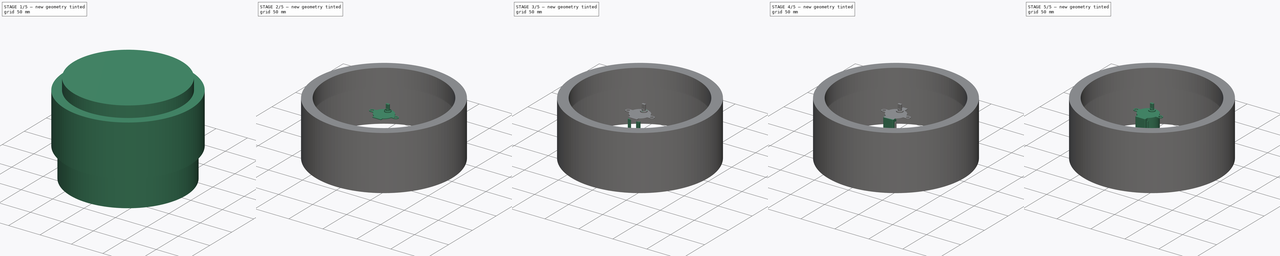
[diagram: build sequence overview — one tinted view per stage of 5, left to right]
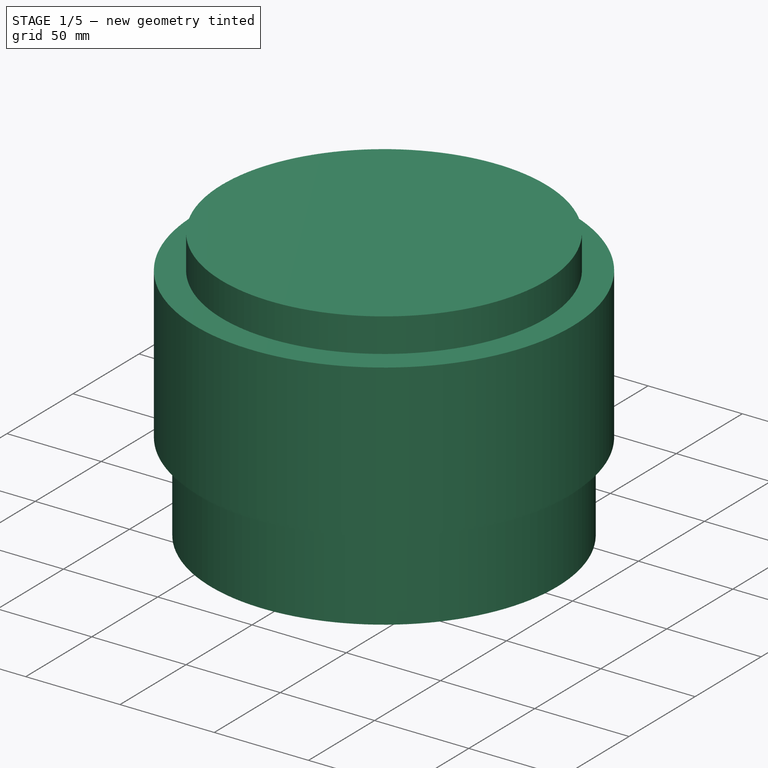
[diagram: stage 1 of 5 — iso view after this stage's code; geometry added in this stage tinted green]
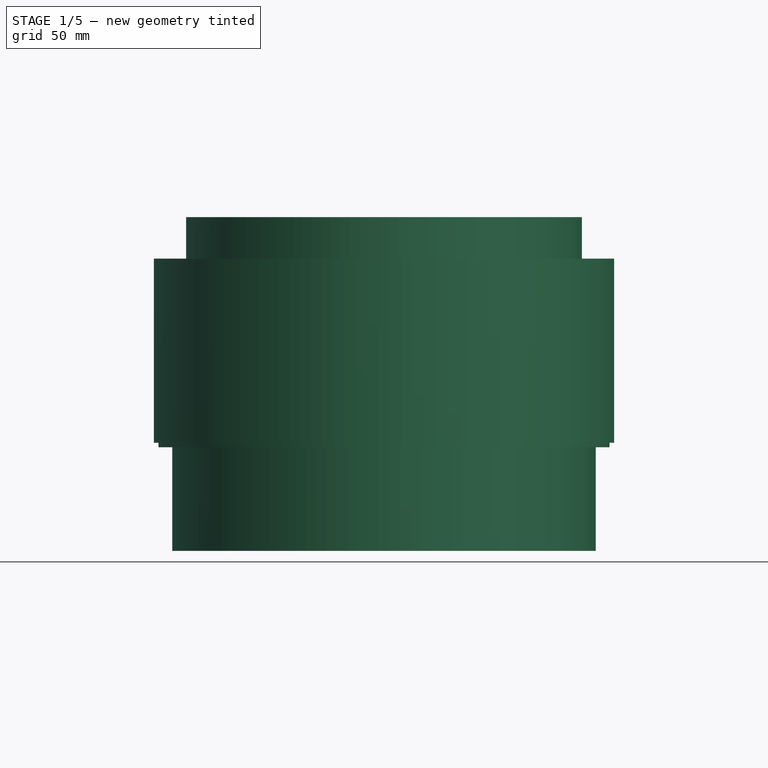
[diagram: stage 1 of 5 — front view after this stage's code; geometry added in this stage tinted green]
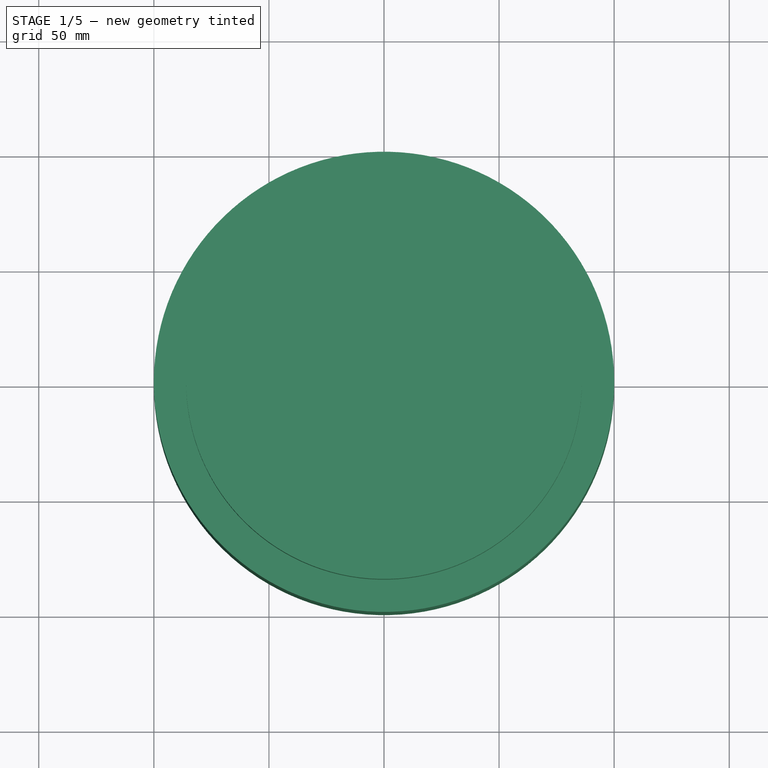
[diagram: stage 1 of 5 — top view after this stage's code; geometry added in this stage tinted green]
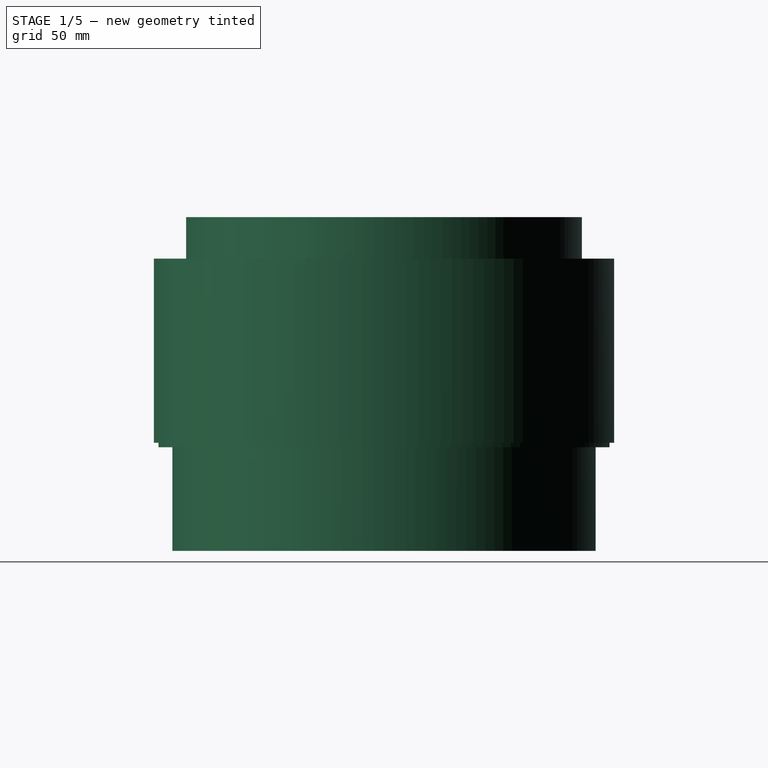
[diagram: stage 1 of 5 — right view after this stage's code; geometry added in this stage tinted green]
FCSTD DOCUMENT  (FreeCAD 1.0R39319 (Git))
Label: clock
License: All rights reserved
LicenseURL: http://en.wikipedia.org/wiki/All_rights_reserved
objects: Part::Cylinder×14, Part::MultiFuse×9, Part::Cut×8, Part::Box×7, Part::Fillet×3, Sketcher::SketchObject×2, PartDesign::Pad×2, PartDesign::Body×2, Part::Chamfer×1, PartDesign::ShapeBinder×1
note: 55 computed .brp shape members not serialized (recipe doc carries the construction recipe); baked Part::Feature solids carry a one-line shape summary decoded from their .brp

FEATURE [Part::Cylinder] Cylinder008
  Angle = 360
  AttacherType = Attacher::AttachEngine3D
  FirstAngle = 0
  Height = 80
  Placement = pos=(0,0,-40) rot=(0,0,1;0rad)
  Radius = 100
  SecondAngle = 0
FEATURE [Part::Cylinder] Cylinder009
  Angle = 360
  AttacherType = Attacher::AttachEngine3D
  FirstAngle = 0
  Height = 80
  Placement = pos=(0,0,-42) rot=(0,0,1;0rad)
  Radius = 98
  SecondAngle = 0
FEATURE [Part::Cylinder] Cylinder010
  Angle = 360
  AttacherType = Attacher::AttachEngine3D
  FirstAngle = 0
  Height = 100
  Placement = pos=(0,0,-42) rot=(0,0,1;0rad)
  Radius = 90
  SecondAngle = 0
FEATURE [Part::Cut] Cut006
  Base = -> Cylinder009
  Refine = true
  Tool = -> Cylinder010
FEATURE [Part::Cylinder] Cylinder011
  Angle = 360
  AttacherType = Attacher::AttachEngine3D
  FirstAngle = 0
  Height = 100
  Placement = pos=(0,0,-42) rot=(0,0,1;0rad)
  Radius = 86
  SecondAngle = 0
FEATURE [Part::Cylinder] Cylinder012
  Angle = 360
  AttacherType = Attacher::AttachEngine3D
  FirstAngle = 0
  Height = 100
  Placement = pos=(0,0,-87) rot=(0,0,1;0rad)
  Radius = 92
  SecondAngle = 0
FEATURE [Part::Cylinder] Cylinder013
  Angle = 360
  AttacherType = Attacher::AttachEngine3D
  FirstAngle = 0
  Height = 100
  Placement = pos=(0,0,-84) rot=(0,0,1;0rad)
  Radius = 88
  SecondAngle = 0
FEATURE [Part::MultiFuse] Fusion007
  Refine = true
  Shapes = -> [Cylinder011,Cylinder012,Cylinder013]
FEATURE [Part::MultiFuse] Fusion008
  Refine = true
  Shapes = -> [Cut006,Fusion007]
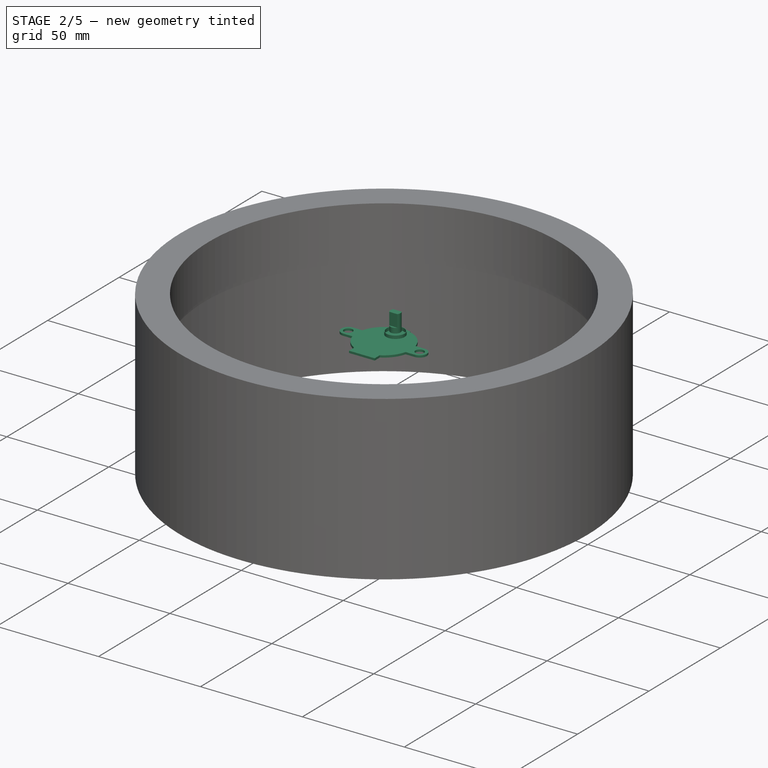
[diagram: stage 2 of 5 — iso view after this stage's code; geometry added in this stage tinted green]
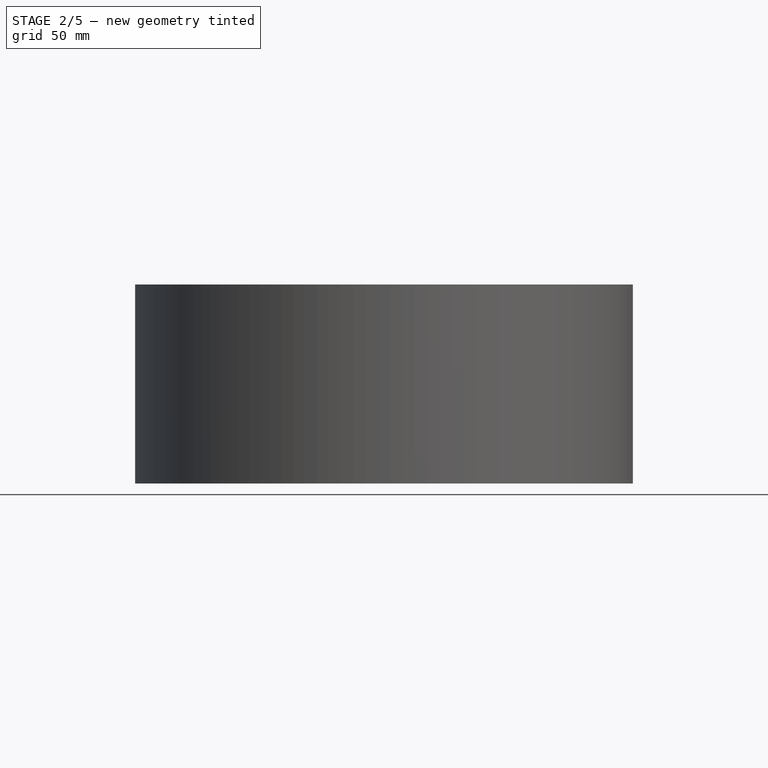
[diagram: stage 2 of 5 — front view after this stage's code; geometry added in this stage tinted green]
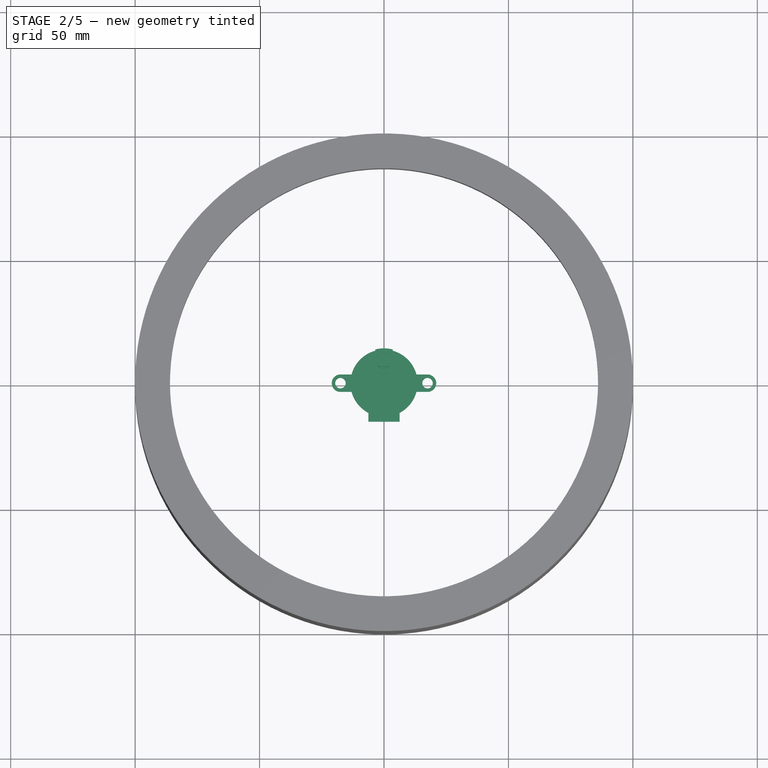
[diagram: stage 2 of 5 — top view after this stage's code; geometry added in this stage tinted green]
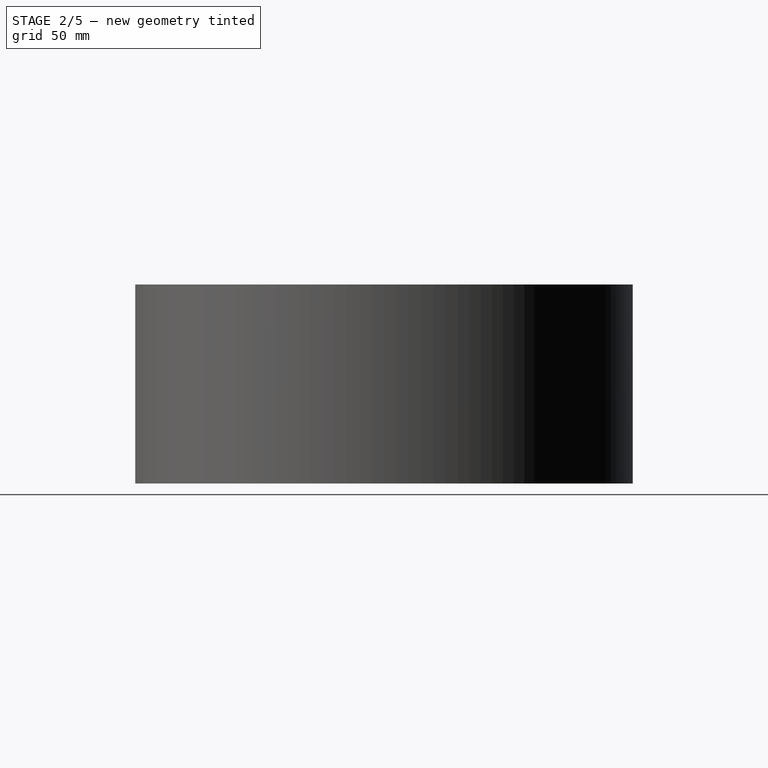
[diagram: stage 2 of 5 — right view after this stage's code; geometry added in this stage tinted green]
FEATURE [PartDesign::Pad] Pad
  AllowMultiFace = false
  Direction = (0,0,1)
  Length = 1
  Length2 = 100
  Profile = -> Sketch
  Suppressed = false
  Type = 0
FEATURE [PartDesign::Body] Body
  AllowCompound = false
  Group = -> [Sketch,Pad]
  Origin = -> Origin
  Placement = pos=(0,0,18) rot=(0,0,1;0rad)
  Tip = -> Pad
FEATURE [Part::Cylinder] Cylinder004
  Angle = 360
  AttacherType = Attacher::AttachEngine3D
  FirstAngle = 0
  Height = 1.5
  Placement = pos=(0,8,19) rot=(0,0,1;0rad)
  Radius = 4.5
  SecondAngle = 0
FEATURE [Part::Cylinder] Cylinder005
  Angle = 360
  AttacherType = Attacher::AttachEngine3D
  FirstAngle = 0
  Height = 2.5
  Placement = pos=(0,8,20.5) rot=(0,0,1;0rad)
  Radius = 2.5
  SecondAngle = 0
FEATURE [Part::Cylinder] Cylinder006
  Angle = 360
  AttacherType = Attacher::AttachEngine3D
  FirstAngle = 0
  Height = 1.5
  Placement = pos=(0,8,19) rot=(0,0,1;0rad)
  Radius = 4.25
  SecondAngle = 0
FEATURE [Part::Cut] Cut005
  Base = -> Cylinder004
  Tool = -> Cylinder006
FEATURE [PartDesign::ShapeBinder] CopyCylinder005
  Placement = pos=(0,8,20.5) rot=(0,0,1;0rad)
  TraceSupport = false
FEATURE [Sketcher::SketchObject] Sketch001
  ArcFitTolerance = 0
  AttachmentSupport = -> [CopyCylinder005]
  FullyConstrained = true
  MakeInternals = false
  MapMode = 5
  Placement = pos=(0,8,23) rot=(0,0,1;0rad)
  sketch-geometry (4):
    g0: ArcOfCircle CenterX=0 CenterY=0 CenterZ=0 NormalX=0 NormalY=0 NormalZ=1 AngleXU=0 Radius=2.5 StartAngle=2.49809 EndAngle=3.78509
    g1: LineSegment StartX=-2 StartY=1.5 StartZ=0 EndX=2 EndY=1.5 EndZ=0
    g2: LineSegment StartX=2 StartY=-1.5 StartZ=0 EndX=-2 EndY=-1.5 EndZ=0
    g3: ArcOfCircle CenterX=0 CenterY=0 CenterZ=0 NormalX=0 NormalY=0 NormalZ=1 AngleXU=0 Radius=2.5 StartAngle=5.63968 EndAngle=6.92669
  constraints (12):
    c: Radius(g0) = 2.5
    c: Coincident(g0,g-1)
    c: Horizontal(g2)
    c: Equal(g0,g3)
    c: Coincident(g0,g3)
    c: Coincident(g2,g0)
    c: Coincident(g2,g3)
    c: Coincident(g1,g3)
    c: Coincident(g1,g0)
    c: DistanceY(g0) = 1.5
    c: DistanceY(g0) = -1.5
    c: Horizontal(g1)
FEATURE [PartDesign::Pad] Pad001
  AllowMultiFace = false
  Direction = (0,0,1)
  Length = 6
  Length2 = 100
  Placement = pos=(0,8,20.5) rot=(0,0,1;0rad)
  Profile = -> Sketch001
  Suppressed = false
  Type = 0
FEATURE [PartDesign::Body] Body001
  AllowCompound = false
  Group = -> [CopyCylinder005,Sketch001,Pad001]
  Origin = -> Origin001
  Tip = -> Pad001
FEATURE [Part::MultiFuse] Fusion004
  Shapes = -> [Cylinder005,Body001]
FEATURE [Part::MultiFuse] Fusion005
  Shapes = -> [Body,Cut005]
FEATURE [Part::Cut] Cut007
  Base = -> Cylinder008
  Refine = true
  Tool = -> Fusion008
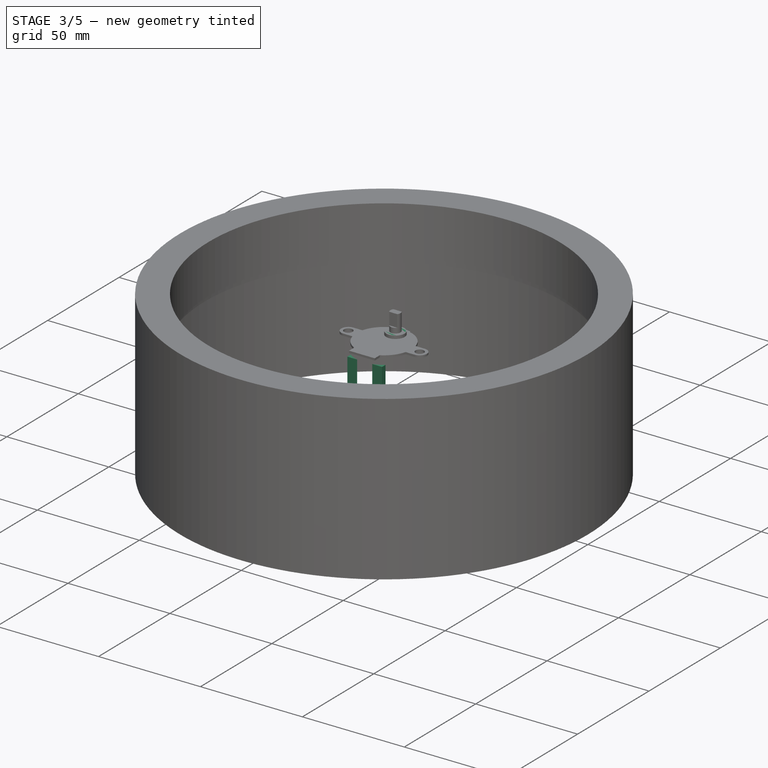
[diagram: stage 3 of 5 — iso view after this stage's code; geometry added in this stage tinted green]
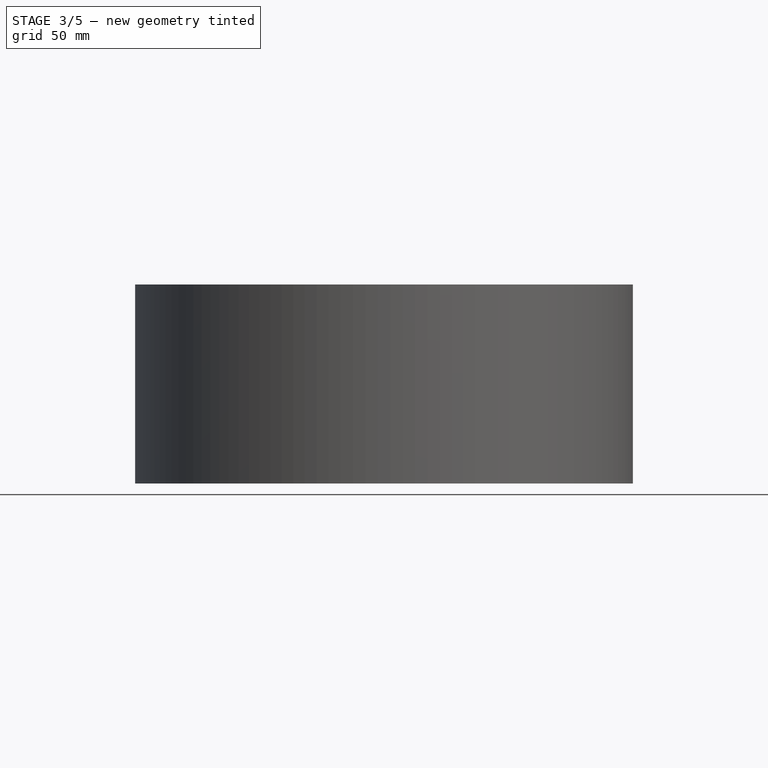
[diagram: stage 3 of 5 — front view after this stage's code; geometry added in this stage tinted green]
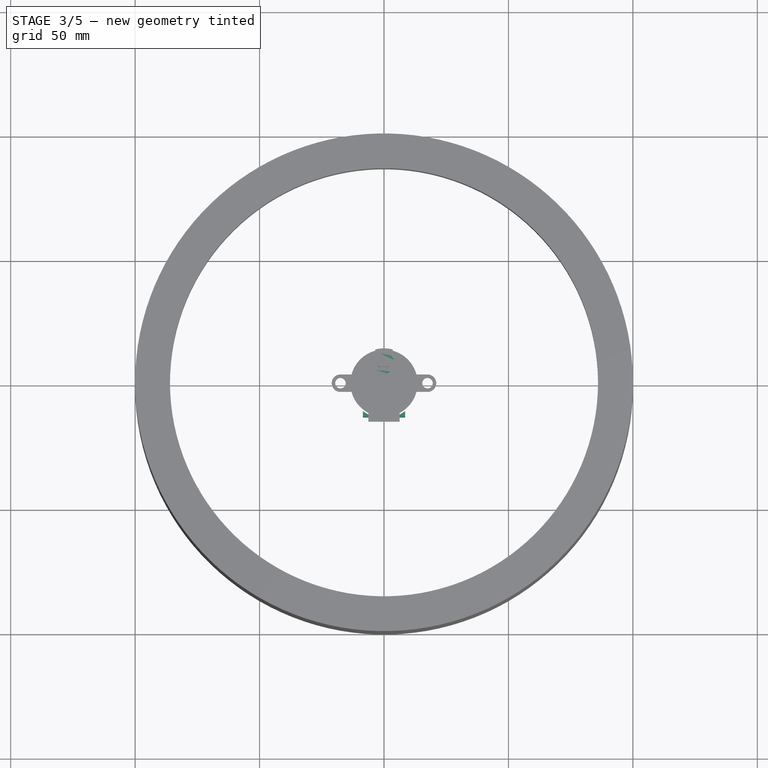
[diagram: stage 3 of 5 — top view after this stage's code; geometry added in this stage tinted green]
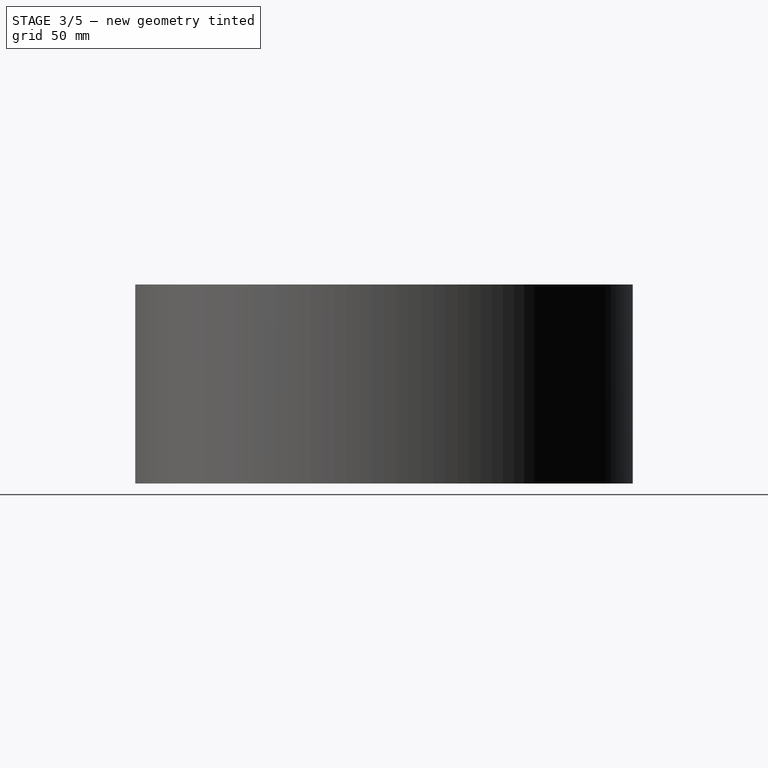
[diagram: stage 3 of 5 — right view after this stage's code; geometry added in this stage tinted green]
FEATURE [Part::Box] Box002  label="Cube002"
  AttacherType = Attacher::AttachEngine3D
  Height = 1
  Length = 12.6
  Placement = pos=(-6.3,-15.5,18) rot=(0,0,1;0rad)
  Width = 5.8
FEATURE [Part::Box] Box003  label="Cube003"
  AttacherType = Attacher::AttachEngine3D
  Height = 1
  Length = 14.6
  Placement = pos=(-7.3,-11.356,18) rot=(0,0,1;0rad)
  Width = 3
FEATURE [Part::MultiFuse] Fusion001
  Shapes = -> [Box002,Box003]
FEATURE [Part::Box] Box006  label="Cube006"
  AttacherType = Attacher::AttachEngine3D
  Height = 13
  Length = 17
  Placement = pos=(-8.5,-13.5,2) rot=(0,0,1;0rad)
  Width = 2.5
FEATURE [Part::Cylinder] Cylinder002
  Angle = 360
  AttacherType = Attacher::AttachEngine3D
  FirstAngle = 0
  Height = 19
  Radius = 14
  SecondAngle = 0
FEATURE [Part::Cut] Cut003
  Base = -> Box006
  Tool = -> Cylinder002
FEATURE [Part::Cylinder] Cylinder003
  Angle = 360
  AttacherType = Attacher::AttachEngine3D
  FirstAngle = 0
  Height = 1
  Placement = pos=(0,0,18) rot=(0,0,1;0rad)
  Radius = 13.5
  SecondAngle = 0
FEATURE [Part::Cylinder] Cylinder007
  Angle = 360
  AttacherType = Attacher::AttachEngine3D
  FirstAngle = 0
  Height = 1.5
  Placement = pos=(0,8,19) rot=(0,0,1;0rad)
  Radius = 4.25
  SecondAngle = 0
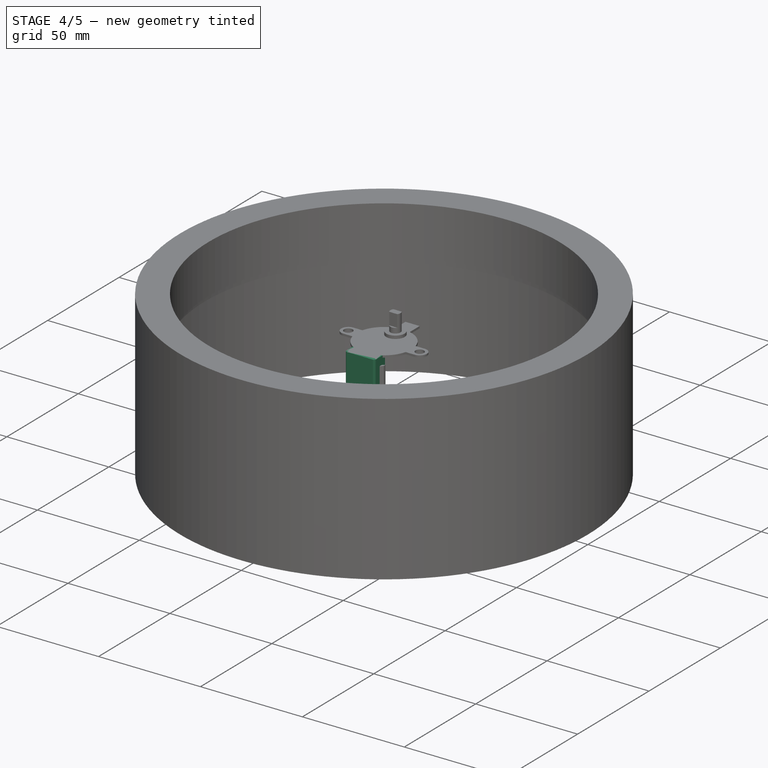
[diagram: stage 4 of 5 — iso view after this stage's code; geometry added in this stage tinted green]
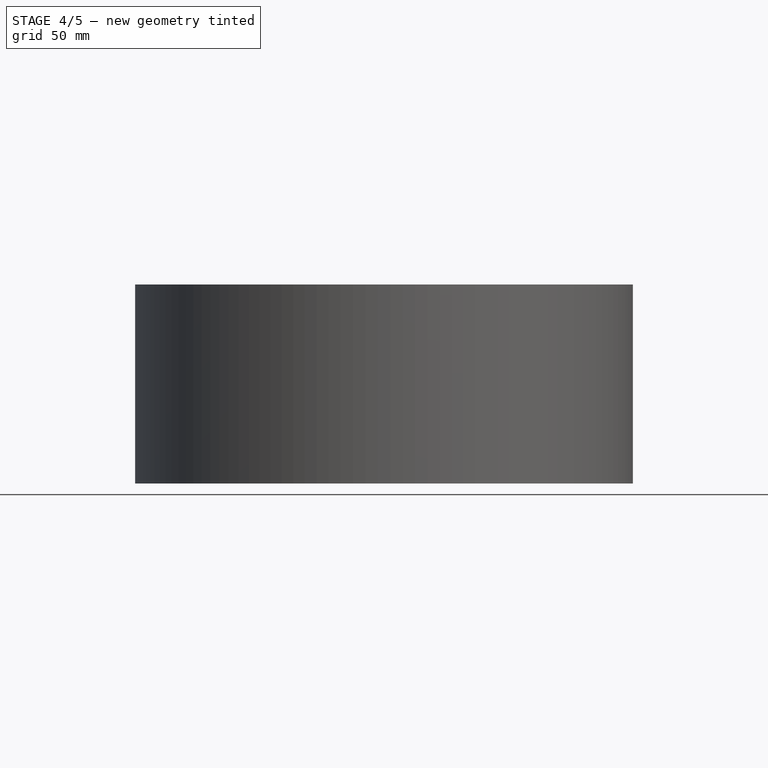
[diagram: stage 4 of 5 — front view after this stage's code; geometry added in this stage tinted green]
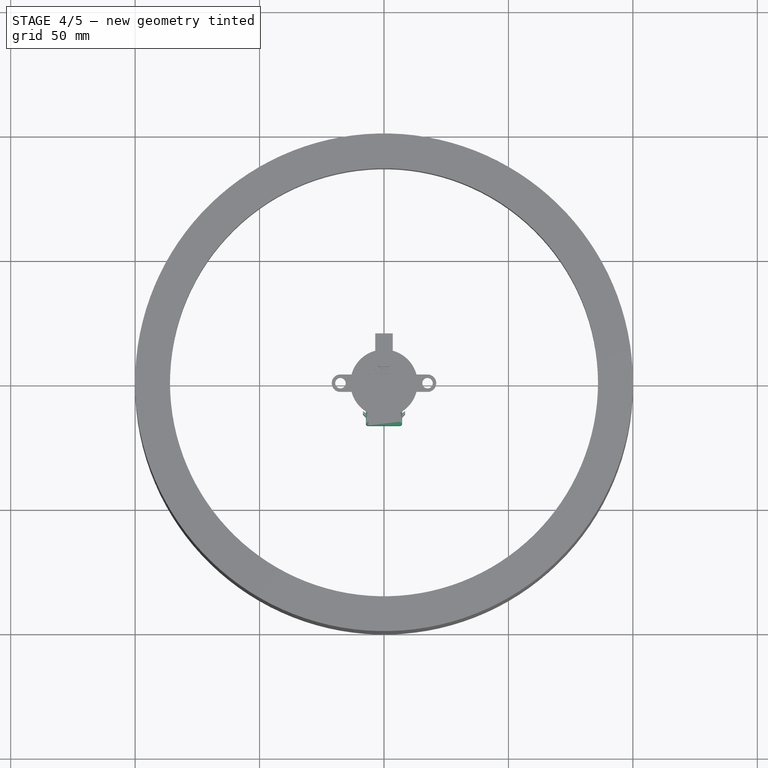
[diagram: stage 4 of 5 — top view after this stage's code; geometry added in this stage tinted green]
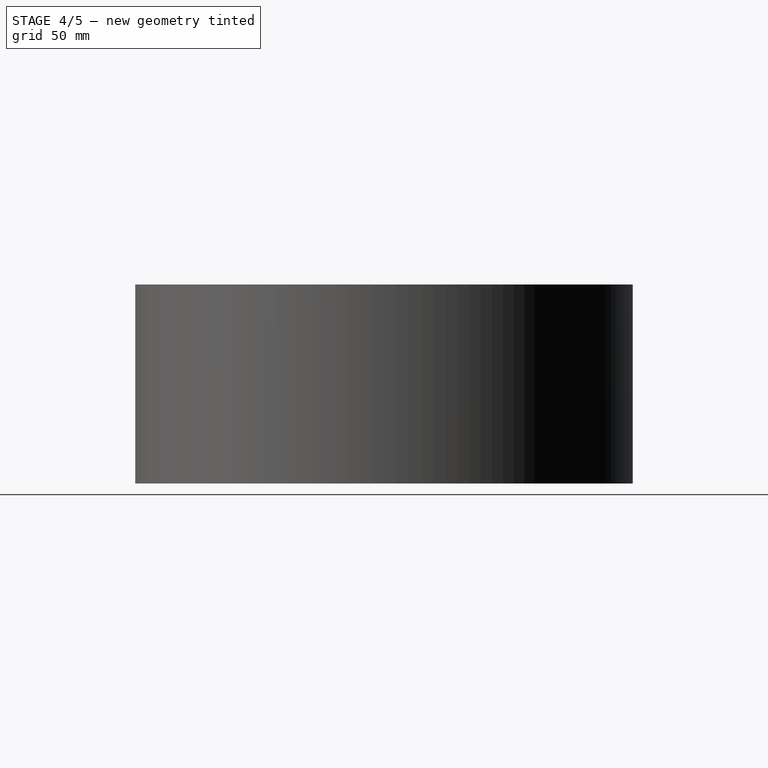
[diagram: stage 4 of 5 — right view after this stage's code; geometry added in this stage tinted green]
FEATURE [Part::Box] Box001  label="Cube001"
  AttacherType = Attacher::AttachEngine3D
  Height = 16
  Length = 14.6
  Placement = pos=(-7.3,-17,3) rot=(0,0,1;0rad)
  Width = 7.3
FEATURE [Part::Cut] Cut001
  Base = -> Box001
  Tool = -> Fusion001
FEATURE [Part::Box] Box005  label="Cube005"
  AttacherType = Attacher::AttachEngine3D
  Height = 1
  Length = 7
  Placement = pos=(-3.5,0,18) rot=(0,0,1;0rad)
  Width = 20
FEATURE [Sketcher::SketchObject] Sketch
  ArcFitTolerance = 0
  AttachmentSupport = -> [XY_Plane]
  FullyConstrained = true
  MakeInternals = false
  MapMode = 5
  sketch-geometry (18):
    g0: ArcOfCircle CenterX=0 CenterY=0 CenterZ=0 NormalX=0 NormalY=0 NormalZ=1 AngleXU=0 Radius=13.5 StartAngle=3.40385 EndAngle=4.22687
    g1: ArcOfCircle CenterX=-17.5 CenterY=0 CenterZ=0 NormalX=0 NormalY=0 NormalZ=1 AngleXU=0 Radius=3.5 StartAngle=1.5708 EndAngle=4.71239
    g2: ArcOfCircle CenterX=17.5 CenterY=0 CenterZ=0 NormalX=0 NormalY=0 NormalZ=1 AngleXU=0 Radius=3.5 StartAngle=4.71239 EndAngle=7.85398
    g3: LineSegment StartX=-17.5 StartY=3.5 StartZ=0 EndX=-13.0384 EndY=3.5 EndZ=0
    g4: LineSegment StartX=-17.5 StartY=-3.5 StartZ=0 EndX=-13.0384 EndY=-3.5 EndZ=0
    g5: LineSegment StartX=13.0384 StartY=3.5 StartZ=0 EndX=17.5 EndY=3.5 EndZ=0
    g6: ArcOfCircle CenterX=0 CenterY=0 CenterZ=0 NormalX=0 NormalY=0 NormalZ=1 AngleXU=0 Radius=13.5 StartAngle=0.262255 EndAngle=1.30854
    g7: LineSegment StartX=13.0384 StartY=-3.5 StartZ=0 EndX=17.5 EndY=-3.5 EndZ=0
    g8: LineSegment StartX=6.3 StartY=-11.9398 StartZ=0 EndX=6.3 EndY=-15.5 EndZ=0
    g9: LineSegment StartX=6.3 StartY=-15.5 StartZ=0 EndX=-6.3 EndY=-15.5 EndZ=0
    g10: LineSegment StartX=-6.3 StartY=-15.5 StartZ=0 EndX=-6.3 EndY=-11.9398 EndZ=0
    g11: ArcOfCircle CenterX=0 CenterY=0 CenterZ=0 NormalX=0 NormalY=0 NormalZ=1 AngleXU=0 Radius=13.5 StartAngle=5.19791 EndAngle=6.02093
    g12: Circle CenterX=-17.5 CenterY=0 CenterZ=0 NormalX=0 NormalY=0 NormalZ=1 AngleXU=0 Radius=2.1
    g13: Circle CenterX=17.5 CenterY=0 CenterZ=0 NormalX=0 NormalY=0 NormalZ=1 AngleXU=0 Radius=2.1
    g14: LineSegment StartX=3.5 StartY=13.5584 StartZ=0 EndX=3.5 EndY=13.0384 EndZ=0
    g15: LineSegment StartX=-3.5 StartY=13.0384 StartZ=0 EndX=-3.5 EndY=13.5584 EndZ=0
    g16: ArcOfCircle CenterX=0 CenterY=0 CenterZ=0 NormalX=0 NormalY=0 NormalZ=1 AngleXU=0 Radius=13.5 StartAngle=1.83305 EndAngle=2.87934
    g17: ArcOfCircle CenterX=4e-16 CenterY=0.0029631 CenterZ=0 NormalX=0 NormalY=0 NormalZ=1 AngleXU=0 Radius=14 StartAngle=1.31812 EndAngle=1.82348
  constraints (51):
    c: Coincident(g0,g-1)
    c: Radius(g0) = 13.5
    c: Equal(g2,g1)
    c: Radius(g1) = 3.5
    c: DistanceX(g1) = -17.5
    c: DistanceX(g2) = 17.5
    c: PointOnObject(g1,g-1)
    c: PointOnObject(g2,g-1)
    c: Horizontal(g3)
    c: Horizontal(g4)
    c: Coincident(g3,g16)
    c: Tangent(g3,g5)
    c: Equal(g0,g6)
    c: Coincident(g6,g5)
    c: Coincident(g0,g6)
    c: Coincident(g2,g7)
    c: Coincident(g2,g5)
    c: Coincident(g1,g3)
    c: Coincident(g1,g4)
    c: Coincident(g4,g0)
    c: Coincident(g7,g11)
    c: Tangent(g4,g7)
    c: DistanceY(g3) = 3.5
    c: DistanceY(g0) = -3.5
    c: Coincident(g8,g9)
    c: Coincident(g9,g10)
    c: Vertical(g8)
    c: Vertical(g10)
    c: DistanceY(g9) = -15.5
    c: Equal(g0,g11)
    c: Coincident(g0,g11)
    c: Coincident(g10,g0)
    c: Coincident(g8,g11)
    c: DistanceX(g0,g8) = 12.6
    c: Symmetric(g9,g8,g-2)
    c: Radius(g12) = 2.1
    c: Coincident(g12,g1)
    c: Coincident(g13,g2)
    c: Equal(g13,g12)
    c: Vertical(g14)
    c: Vertical(g15)
    c: Coincident(g6,g16)
    c: Coincident(g15,g16)
    c: Coincident(g14,g6)
    c: DistanceX(g15,g6) = 7
    c: Symmetric(g15,g6,g-2)
    c: Coincident(g17,g14)
    c: Coincident(g15,g17)
    c: DistanceY(g15,g15) = 0.52
    c: Equal(g14,g15)
    c: Radius(g17) = 14
FEATURE [Part::MultiFuse] Fusion003
  Shapes = -> [Cut001,Cut003]
FEATURE [Part::Chamfer] Chamfer
  Base = -> Fusion003
  EdgeLinks = -> Fusion003 [Edge40,Edge61]
  Edges = 2 edges r=1.15: [Edge40,Edge61]
FEATURE [Part::Fillet] Fillet
  Base = -> Chamfer
  EdgeLinks = -> Chamfer [Edge24,Edge45]
  Edges = 2 edges r=1: [Edge24,Edge45]
FEATURE [Part::Fillet] Fillet001
  Base = -> Fillet
  EdgeLinks = -> Fillet [Edge35,Edge61,Edge70,Edge71,Edge75,Edge76]
  Edges = 6 edges r=0.15: [Edge35,Edge61,Edge70,Edge71,Edge75,Edge76]
FEATURE [Part::Fillet] Fillet003
  Base = -> Fillet001
  EdgeLinks = -> Fillet001 [Edge24,Edge28,Edge29,Edge30,Edge31]
  Edges = 5 edges r=0.5: [Edge24,Edge28,Edge29,Edge30,Edge31]
FEATURE [Part::Cut] Cut004
  Base = -> Fillet003
  Tool = -> Cylinder003
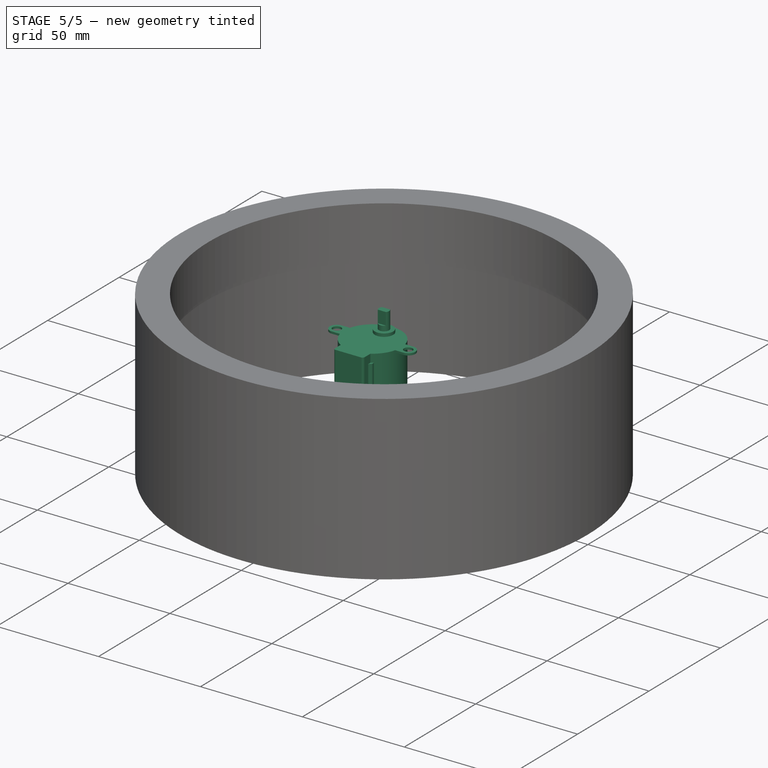
[diagram: stage 5 of 5 — iso view after this stage's code; geometry added in this stage tinted green]
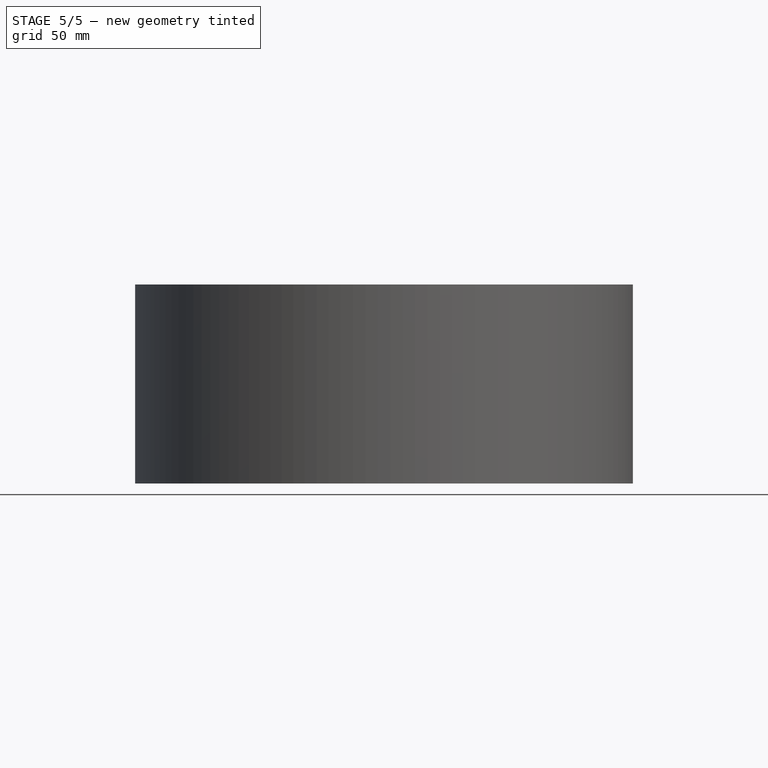
[diagram: stage 5 of 5 — front view after this stage's code; geometry added in this stage tinted green]
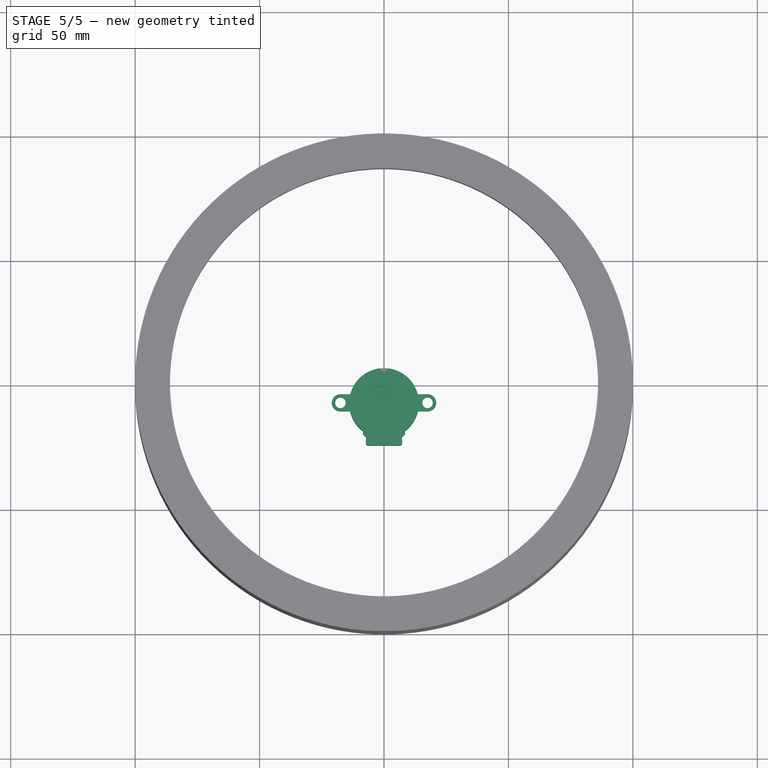
[diagram: stage 5 of 5 — top view after this stage's code; geometry added in this stage tinted green]
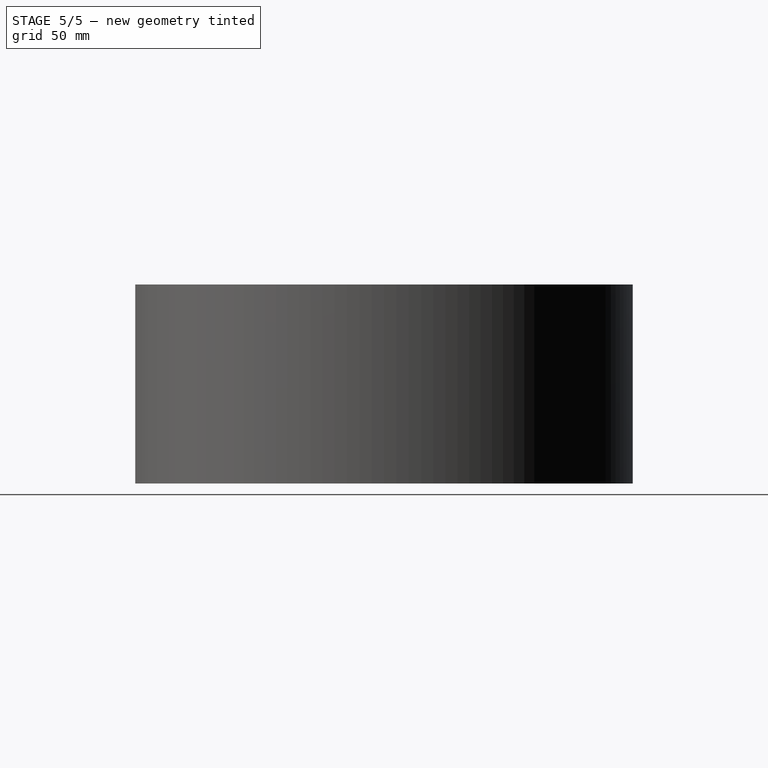
[diagram: stage 5 of 5 — right view after this stage's code; geometry added in this stage tinted green]
FEATURE [Part::Cylinder] Cylinder
  Angle = 360
  AttacherType = Attacher::AttachEngine3D
  FirstAngle = 0
  Height = 19
  Radius = 14
  SecondAngle = 0
FEATURE [Part::Cylinder] Cylinder001
  Angle = 360
  AttacherType = Attacher::AttachEngine3D
  FirstAngle = 0
  Height = 1
  Placement = pos=(0,0,18) rot=(0,0,1;0rad)
  Radius = 13.5
  SecondAngle = 0
FEATURE [Part::Box] Box  label="Cube"
  AttacherType = Attacher::AttachEngine3D
  Height = 16
  Length = 14.6
  Placement = pos=(-7.3,-17,3) rot=(0,0,1;0rad)
  Width = 7.3
FEATURE [Part::MultiFuse] Fusion
  Shapes = -> [Cylinder001,Box]
FEATURE [Part::Cut] Cut
  Base = -> Cylinder
  Tool = -> Fusion
FEATURE [Part::Box] Box004  label="Cube004"
  AttacherType = Attacher::AttachEngine3D
  Height = 1
  Length = 30
  Placement = pos=(-15,-3.5,18) rot=(0,0,1;0rad)
  Width = 7
FEATURE [Part::MultiFuse] Fusion002
  Shapes = -> [Box004,Box005]
FEATURE [Part::Cut] Cut002
  Base = -> Cut
  Tool = -> Fusion002
FEATURE [Part::MultiFuse] Fusion006  label="motor"
  Placement = pos=(0,-8,4) rot=(0,0,1;0rad)
  Refine = true
  Shapes = -> [Cut002,Cut004,Cylinder007,Fusion004,Fusion005]
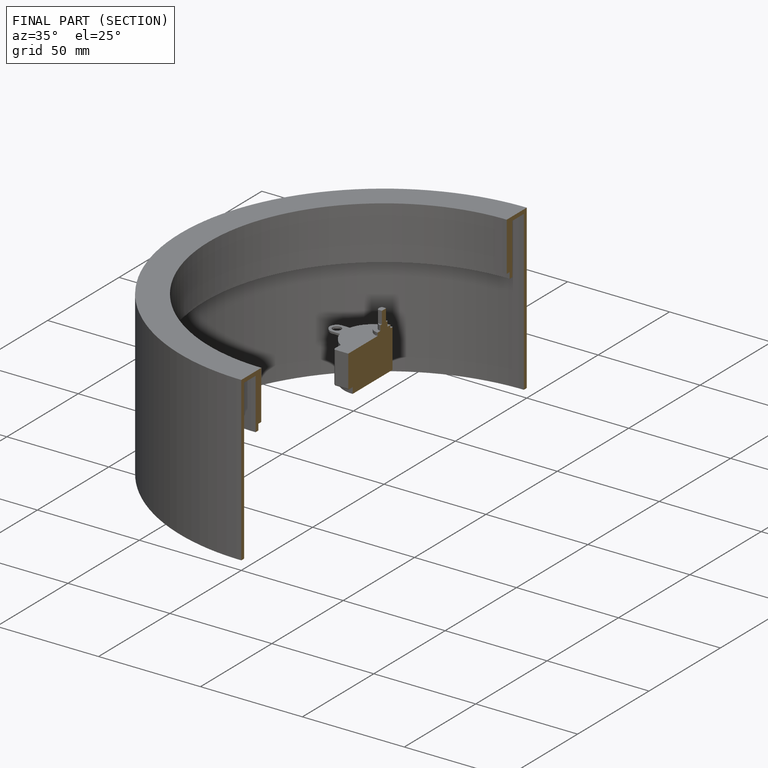
[diagram: finished part — half-section view (interior)]
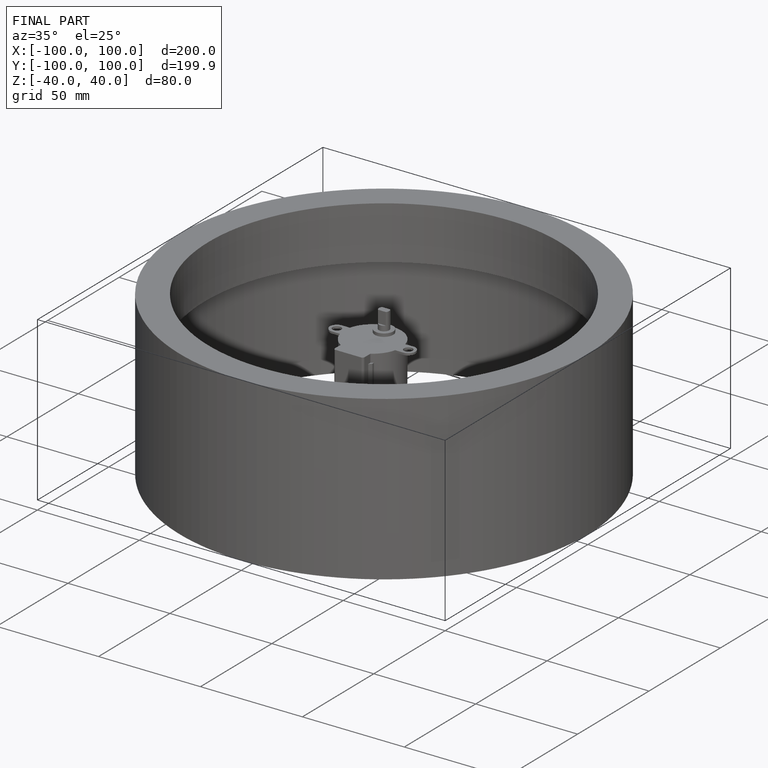
[diagram: finished part — iso view with bounding-box wireframe]
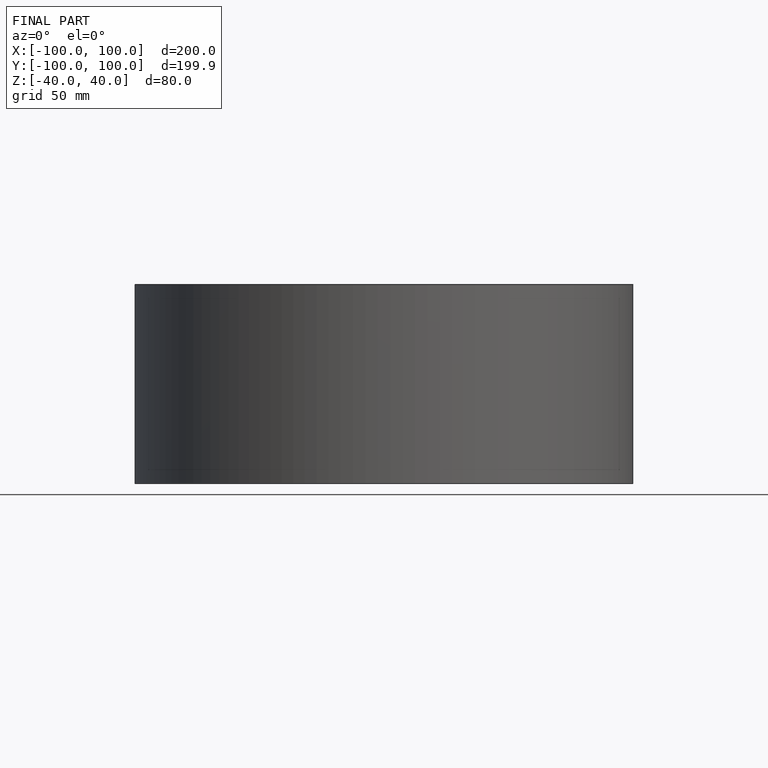
[diagram: finished part — front view with bounding-box wireframe]
